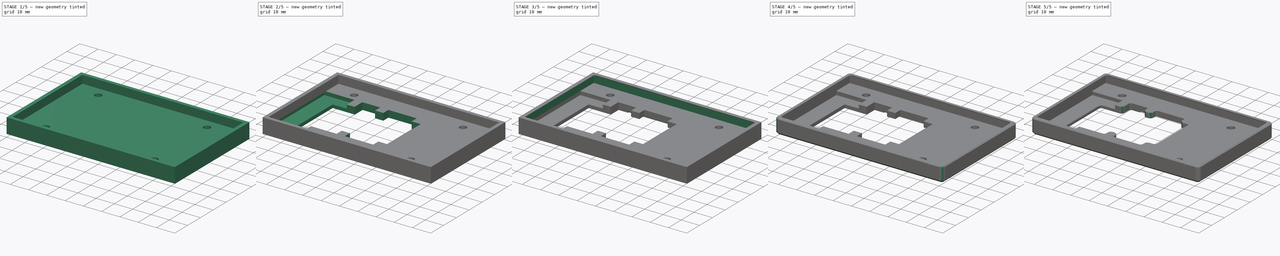
[diagram: build sequence overview — one tinted view per stage of 5, left to right]
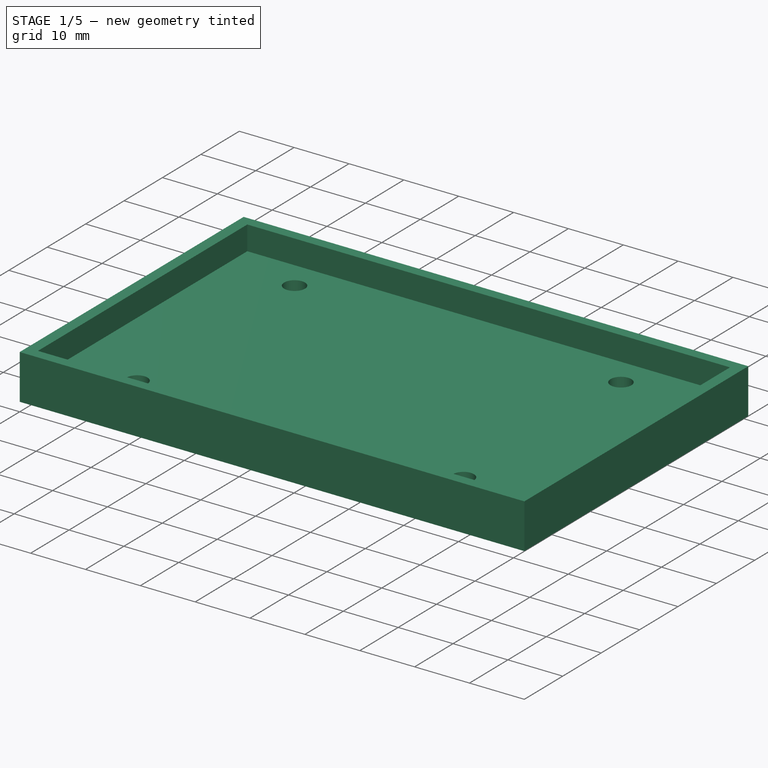
[diagram: stage 1 of 5 — iso view after this stage's code; geometry added in this stage tinted green]
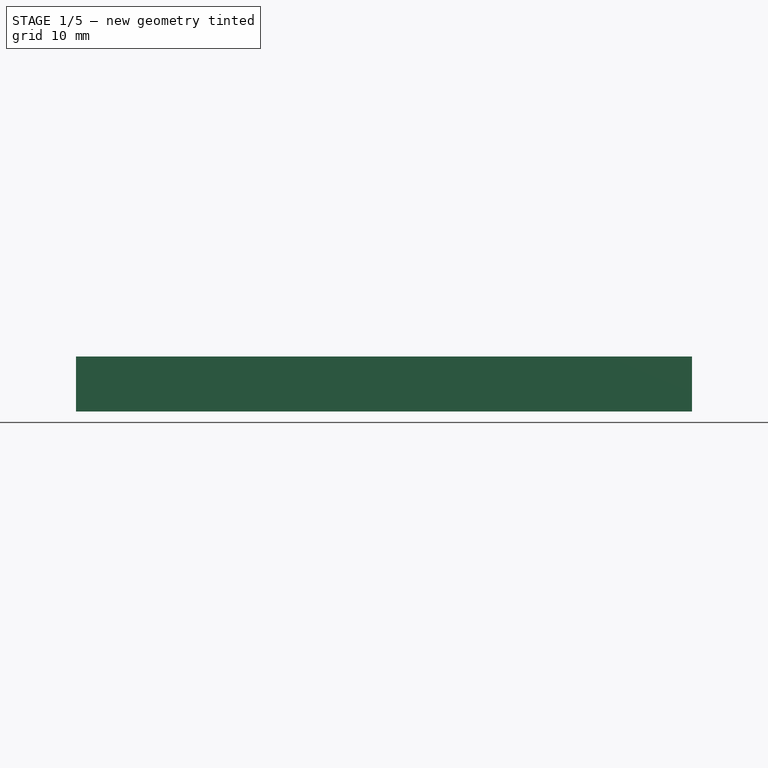
[diagram: stage 1 of 5 — front view after this stage's code; geometry added in this stage tinted green]
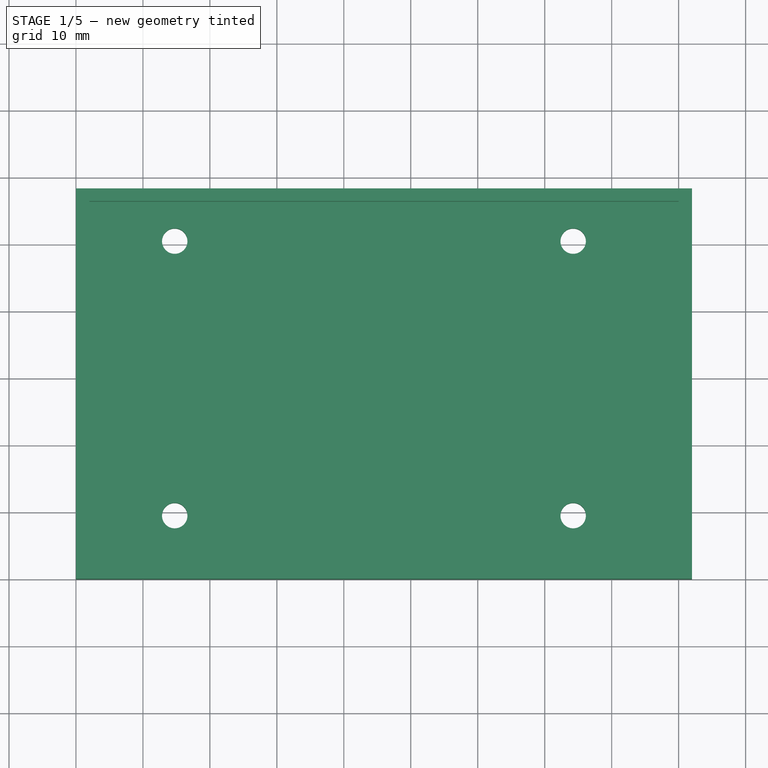
[diagram: stage 1 of 5 — top view after this stage's code; geometry added in this stage tinted green]
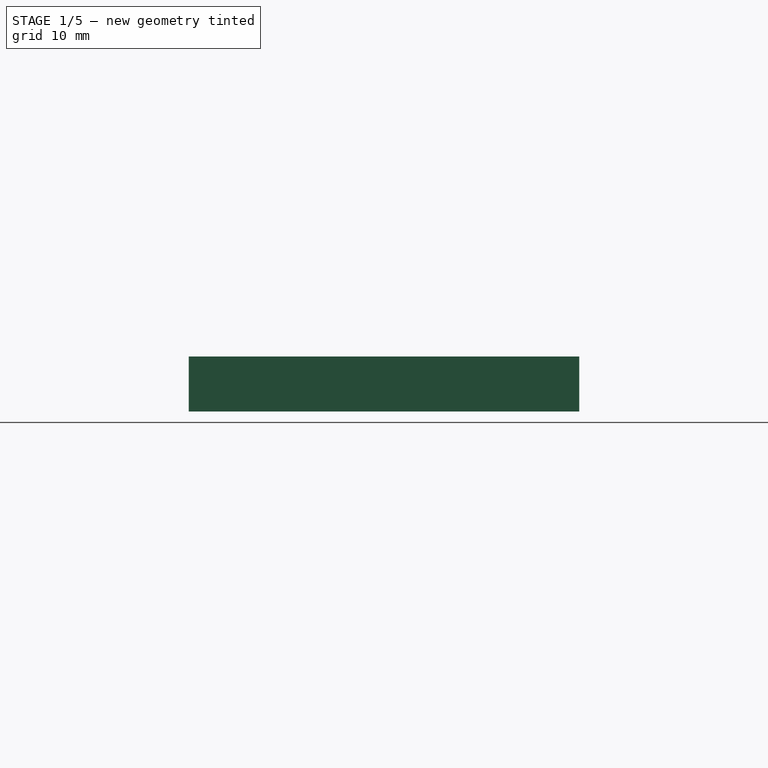
[diagram: stage 1 of 5 — right view after this stage's code; geometry added in this stage tinted green]
FCSTD DOCUMENT  (FreeCAD 1.0R39109 (Git))
Label: v0_display_mount
License: All rights reserved
LicenseURL: https://en.wikipedia.org/wiki/All_rights_reserved
objects: App::Part×13, Sketcher::SketchObject×8, PartDesign::Pocket×7, Part::Feature×6, PartDesign::Fillet×4, PartDesign::Chamfer×4, PartDesign::Pad×1, PartDesign::Body×1
note: 71 computed .brp shape members not serialized (recipe doc carries the construction recipe); baked Part::Feature solids carry a one-line shape summary decoded from their .brp

FEATURE [Sketcher::SketchObject] Sketch
  ArcFitTolerance = 1e-06
  AttachmentSupport = -> [XY_Plane001]
  FullyConstrained = true
  MakeInternals = false
  MapMode = 5
  sketch-geometry (4):
    g0: LineSegment StartX=0 StartY=0 StartZ=0 EndX=92 EndY=0 EndZ=0
    g1: LineSegment StartX=92 StartY=0 StartZ=0 EndX=92 EndY=58.3 EndZ=0
    g2: LineSegment StartX=92 StartY=58.3 StartZ=0 EndX=0 EndY=58.3 EndZ=0
    g3: LineSegment StartX=0 StartY=58.3 StartZ=0 EndX=0 EndY=0 EndZ=0
  constraints (11):
    c: Coincident(g0,g1)
    c: Coincident(g1,g2)
    c: Coincident(g2,g3)
    c: Coincident(g3,g0)
    c: Horizontal(g0)
    c: Horizontal(g2)
    c: Vertical(g1)
    c: Vertical(g3)
    c: Coincident(g0,g-1)
    c: DistanceX(g2,g2) = 92
    c: DistanceY(g1,g1) = 58.3
FEATURE [PartDesign::Pad] Pad
  Direction = (0,0,1)
  Length = 8.2
  Length2 = 10
  Profile = -> Sketch
  ReferenceAxis = -> Sketch [N_Axis]
  Refine = true
  Suppressed = false
  Type = 0
FEATURE [Sketcher::SketchObject] Sketch001
  ArcFitTolerance = 1e-06
  AttachmentSupport = -> [Pad]
  FullyConstrained = true
  MakeInternals = false
  MapMode = 5
  Placement = pos=(0,0,8.2) rot=(0,0,1;0rad)
  sketch-geometry (4):
    g0: LineSegment StartX=2 StartY=56.4 StartZ=0 EndX=2 EndY=1.9 EndZ=0
    g1: LineSegment StartX=2 StartY=1.9 StartZ=0 EndX=90 EndY=1.9 EndZ=0
    g2: LineSegment StartX=90 StartY=1.9 StartZ=0 EndX=90 EndY=56.4 EndZ=0
    g3: LineSegment StartX=90 StartY=56.4 StartZ=0 EndX=2 EndY=56.4 EndZ=0
  constraints (12):
    c: Coincident(g0,g1)
    c: Coincident(g1,g2)
    c: Coincident(g2,g3)
    c: Coincident(g3,g0)
    c: Vertical(g0)
    c: Vertical(g2)
    c: Horizontal(g1)
    c: Horizontal(g3)
    c: DistanceX(g3,g3) = 88
    c: DistanceY(g2,g2) = 54.5
    c: Distance(g-2,g0) = 2
    c: Distance(g-1,g1) = 1.9
FEATURE [PartDesign::Pocket] Pocket  label="display cutout"
  BaseFeature = -> Pad
  Direction = (0,0,-1)
  Length = 4.4
  Length2 = 5
  Profile = -> Sketch001
  ReferenceAxis = -> Sketch001 [N_Axis]
  Refine = true
  Suppressed = false
  Type = 0
FEATURE [Sketcher::SketchObject] Sketch005
  ArcFitTolerance = 1e-06
  FullyConstrained = false
  MakeInternals = false
  MapMode = 5
  Placement = pos=(0,0,3.8) rot=(0,0,1;0rad)
  sketch-geometry (8):
    g0: LineSegment [constr] StartX=-5.89842 StartY=50.5 StartZ=0 EndX=111.03 EndY=50.5 EndZ=0
    g1: LineSegment [constr] StartX=-7.67481 StartY=9.5 StartZ=0 EndX=111.866 EndY=9.5 EndZ=0
    g2: LineSegment [constr] StartX=14.75 StartY=65.9034 StartZ=0 EndX=14.75 EndY=-12.4668 EndZ=0
    g3: LineSegment [constr] StartX=74.25 StartY=66.7393 StartZ=0 EndX=74.25 EndY=-11.0039 EndZ=0
    g4: Circle CenterX=14.75 CenterY=50.5 CenterZ=0 NormalX=0 NormalY=0 NormalZ=1 AngleXU=0 Radius=1.9
    g5: Circle CenterX=14.75 CenterY=9.5 CenterZ=0 NormalX=0 NormalY=0 NormalZ=1 AngleXU=0 Radius=1.9
    g6: Circle CenterX=74.25 CenterY=9.5 CenterZ=0 NormalX=0 NormalY=0 NormalZ=1 AngleXU=0 Radius=1.9
    g7: Circle CenterX=74.25 CenterY=50.5 CenterZ=0 NormalX=0 NormalY=0 NormalZ=1 AngleXU=0 Radius=1.9
  constraints (20):
    c: Horizontal(g0)
    c: Horizontal(g1)
    c: Vertical(g2)
    c: Vertical(g3)
    c: Distance(g1,g0) = 41
    c: Distance(g3,g2) = 59.5
    c: Distance(g-1,g1) = 9.5
    c: Distance(g-2,g2) = 14.75
    c: PointOnObject(g4,g0)
    c: PointOnObject(g5,g1)
    c: PointOnObject(g5,g2)
    c: PointOnObject(g4,g2)
    c: PointOnObject(g7,g3)
    c: PointOnObject(g7,g0)
    c: PointOnObject(g6,g3)
    c: PointOnObject(g6,g1)
    c: Diameter(g4) = 3.8
    c: Equal(g4,g7)
    c: Equal(g7,g6)
    c: Equal(g6,g5)
FEATURE [PartDesign::Pocket] Pocket004  label="mounting holes"
  BaseFeature = -> Pocket
  Direction = (0,0,-1)
  Length = 5
  Length2 = 5
  Profile = -> Sketch005
  ReferenceAxis = -> Sketch005 [N_Axis]
  Refine = true
  Suppressed = false
  Type = 0
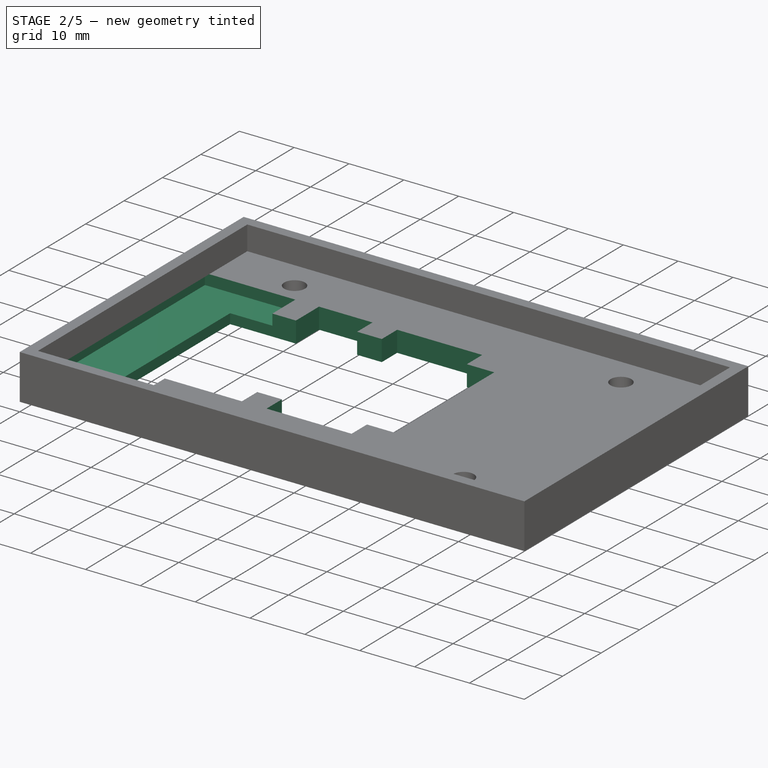
[diagram: stage 2 of 5 — iso view after this stage's code; geometry added in this stage tinted green]
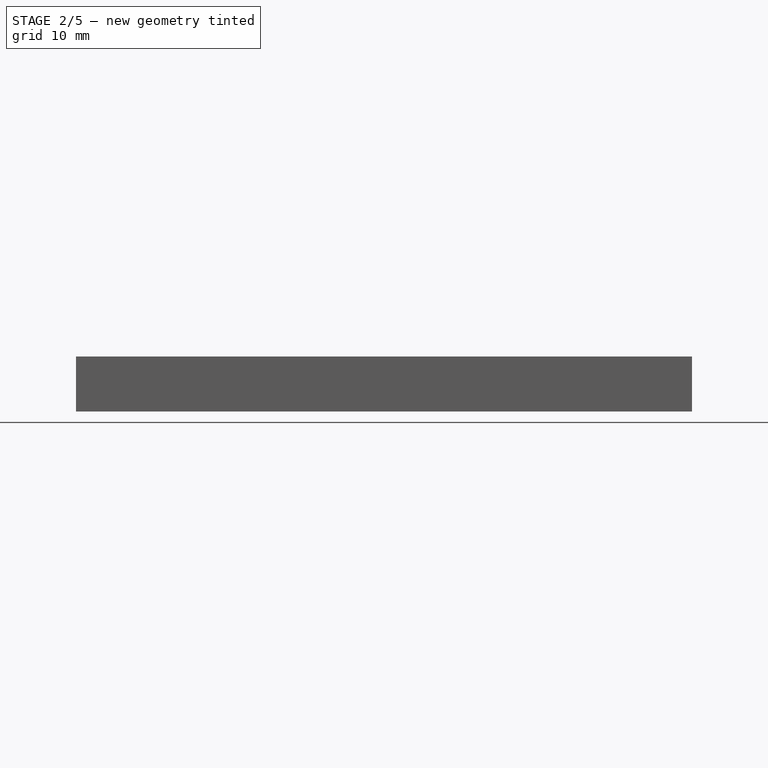
[diagram: stage 2 of 5 — front view after this stage's code; geometry added in this stage tinted green]
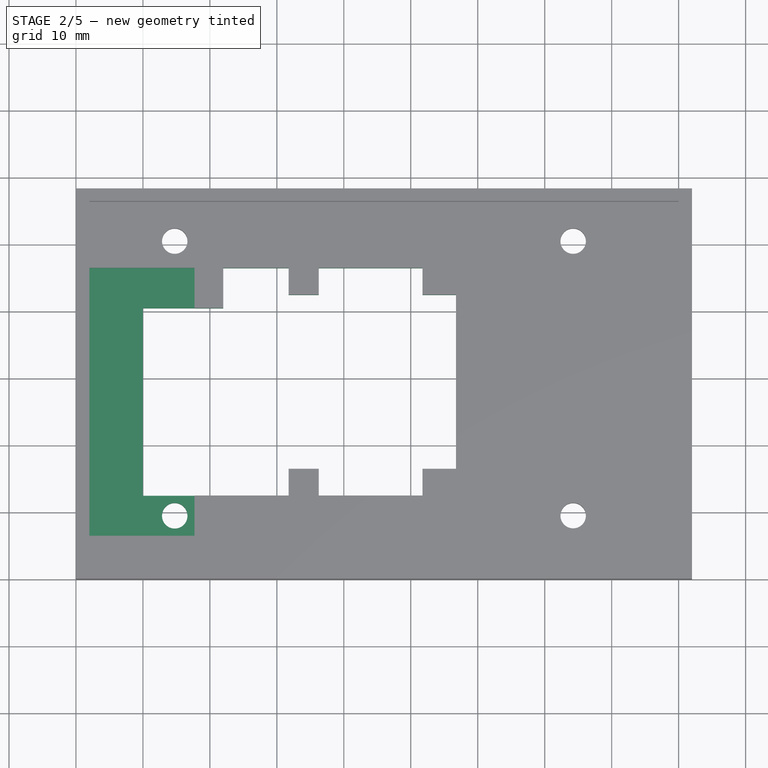
[diagram: stage 2 of 5 — top view after this stage's code; geometry added in this stage tinted green]
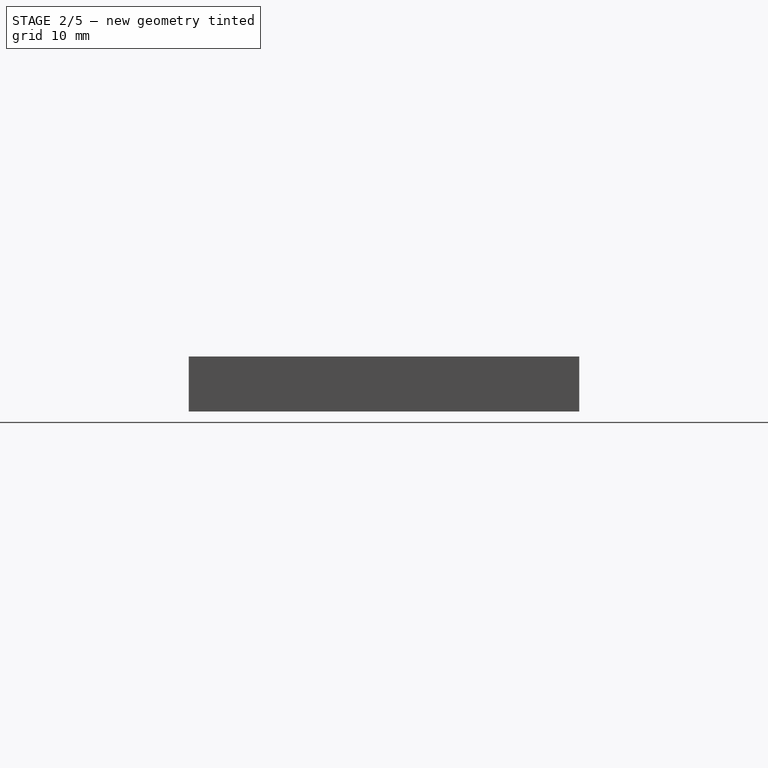
[diagram: stage 2 of 5 — right view after this stage's code; geometry added in this stage tinted green]
FEATURE [Sketcher::SketchObject] Sketch006
  ArcFitTolerance = 1e-06
  AttachmentSupport = -> [Pocket004]
  FullyConstrained = true
  MakeInternals = false
  MapMode = 5
  Placement = pos=(0,0,3.8) rot=(0,0,1;0rad)
  sketch-geometry (4):
    g0: LineSegment StartX=1.2 StartY=46.5 StartZ=0 EndX=1.2 EndY=6.5 EndZ=0
    g1: LineSegment StartX=1.2 StartY=6.5 StartZ=0 EndX=17.7 EndY=6.5 EndZ=0
    g2: LineSegment StartX=17.7 StartY=6.5 StartZ=0 EndX=17.7 EndY=46.5 EndZ=0
    g3: LineSegment StartX=17.7 StartY=46.5 StartZ=0 EndX=1.2 EndY=46.5 EndZ=0
  constraints (12):
    c: Coincident(g0,g1)
    c: Coincident(g1,g2)
    c: Coincident(g2,g3)
    c: Coincident(g3,g0)
    c: Vertical(g0)
    c: Vertical(g2)
    c: Horizontal(g1)
    c: Horizontal(g3)
    c: DistanceX(g3,g3) = 16.5
    c: DistanceY(g0,g0) = 40
    c: Distance(g0,g-2) = 1.2
    c: Distance(g-1,g1) = 6.5
FEATURE [PartDesign::Pocket] Pocket005  label="flat flex cutout"
  BaseFeature = -> Pocket004
  Direction = (0,0,-1)
  Length = 2
  Length2 = 5
  Profile = -> Sketch006
  ReferenceAxis = -> Sketch006 [N_Axis]
  Refine = true
  Suppressed = false
  Type = 0
FEATURE [Sketcher::SketchObject] Sketch007
  ArcFitTolerance = 1e-06
  AttachmentSupport = -> [Pocket005]
  FullyConstrained = true
  MakeInternals = false
  MapMode = 5
  Placement = pos=(0,0,3.8) rot=(0,0,1;0rad)
  sketch-geometry (18):
    g0: LineSegment StartX=10 StartY=40.5 StartZ=0 EndX=22 EndY=40.5 EndZ=0
    g1: LineSegment StartX=10 StartY=40.5 StartZ=0 EndX=10 EndY=12.5 EndZ=0
    g2: LineSegment StartX=22 StartY=40.5 StartZ=0 EndX=22 EndY=46.5 EndZ=0
    g3: LineSegment StartX=22 StartY=46.5 StartZ=0 EndX=31.75 EndY=46.5 EndZ=0
    g4: LineSegment StartX=31.75 StartY=46.5 StartZ=0 EndX=31.75 EndY=42.5 EndZ=0
    g5: LineSegment StartX=31.75 StartY=42.5 StartZ=0 EndX=36.25 EndY=42.5 EndZ=0
    g6: LineSegment StartX=36.25 StartY=42.5 StartZ=0 EndX=36.25 EndY=46.5 EndZ=0
    g7: LineSegment StartX=36.25 StartY=46.5 StartZ=0 EndX=51.75 EndY=46.5 EndZ=0
    g8: LineSegment StartX=51.75 StartY=46.5 StartZ=0 EndX=51.75 EndY=42.5 EndZ=0
    g9: LineSegment StartX=51.75 StartY=42.5 StartZ=0 EndX=56.75 EndY=42.5 EndZ=0
    g10: LineSegment StartX=56.75 StartY=42.5 StartZ=0 EndX=56.75 EndY=16.5 EndZ=0
    g11: LineSegment StartX=56.75 StartY=16.5 StartZ=0 EndX=51.75 EndY=16.5 EndZ=0
    g12: LineSegment StartX=51.75 StartY=16.5 StartZ=0 EndX=51.75 EndY=12.5 EndZ=0
    g13: LineSegment StartX=51.75 StartY=12.5 StartZ=0 EndX=36.25 EndY=12.5 EndZ=0
    g14: LineSegment StartX=36.25 StartY=12.5 StartZ=0 EndX=36.25 EndY=16.5 EndZ=0
    g15: LineSegment StartX=36.25 StartY=16.5 StartZ=0 EndX=31.75 EndY=16.5 EndZ=0
    g16: LineSegment StartX=31.75 StartY=16.5 StartZ=0 EndX=31.75 EndY=12.5 EndZ=0
    g17: LineSegment StartX=10 StartY=12.5 StartZ=0 EndX=31.75 EndY=12.5 EndZ=0
  constraints (54):
    c: Horizontal(g0)
    c: Coincident(g1,g0)
    c: Vertical(g1)
    c: Distance(g1,g-2) = 10
    c: Distance(g1,g-1) = 12.5
    c: Distance(g0,g-1) = 40.5
    c: Coincident(g2,g0)
    c: Vertical(g2)
    c: Coincident(g3,g2)
    c: Horizontal(g3)
    c: Coincident(g4,g3)
    c: Vertical(g4)
    c: Coincident(g5,g4)
    c: Horizontal(g5)
    c: Coincident(g6,g5)
    c: Vertical(g6)
    c: Coincident(g7,g6)
    c: Horizontal(g7)
    c: Coincident(g8,g7)
    c: Vertical(g8)
    c: Coincident(g9,g8)
    c: Horizontal(g9)
    c: Coincident(g10,g9)
    c: Vertical(g10)
    c: Coincident(g11,g10)
    c: Horizontal(g11)
    c: Coincident(g12,g11)
    c: Vertical(g12)
    c: Coincident(g13,g12)
    c: Horizontal(g13)
    c: Coincident(g14,g13)
    c: Vertical(g14)
    c: Coincident(g15,g14)
    c: Horizontal(g15)
    c: Coincident(g16,g15)
    c: Vertical(g16)
    c: DistanceY(g2,g2) = 6
    c: DistanceX(g3,g3) = 9.75
    c: DistanceX(g5,g5) = 4.5
    c: DistanceX(g7,g7) = 15.5
    c: DistanceX(g9,g9) = 5
    c: DistanceX(g0,g0) = 12
    c: Coincident(g17,g1)
    c: Horizontal(g17)
    c: Coincident(g17,g16)
    c: DistanceX(g17,g17) = 21.75
    c: DistanceY(g16,g16) = 4
    c: Equal(g16,g14)
    c: Equal(g14,g12)
    c: DistanceX(g15,g15) = 4.5
    c: DistanceX(g13,g13) = 15.5
    c: Equal(g4,g6)
    c: Equal(g6,g8)
    c: DistanceY(g4,g4) = 4
FEATURE [PartDesign::Pocket] Pocket006
  BaseFeature = -> Pocket005
  Direction = (0,0,-1)
  Length = 5
  Length2 = 5
  Profile = -> Sketch007
  ReferenceAxis = -> Sketch007 [N_Axis]
  Refine = true
  Suppressed = false
  Type = 0
FEATURE [Part::Feature] Part__Feature  label="Open CASCADE STEP translator 6.8 1.1.1"
  Placement = pos=(0,0,-0.795404) rot=(0,0,1;0rad)
  shape: bbox 30 x 35 x 0.7954 mm, 26 faces (baked)
FEATURE [App::Part] Board
  Group = -> [Part__Feature]
  Origin = -> Origin002
FEATURE [Part::Feature] Part__Feature001  label="Extruded"
  shape: bbox 0.95 x 1.7 x 0.6 mm, 6 faces (baked)
FEATURE [App::Part] _230319136  label="6230319136"
  Group = -> [Part__Feature001]
  Origin = -> Origin003
  Placement = pos=(6.589,22.787,0) rot=(0,0,1;0rad)
FEATURE [App::Part] R3
  Group = -> [_230319136]
  Origin = -> Origin004
FEATURE [Part::Feature] Part__Feature002  label="Extruded001"
  shape: bbox 0.95 x 1.7 x 0.6 mm, 6 faces (baked)
FEATURE [App::Part] _230319137  label="6230319136001"
  Group = -> [Part__Feature002]
  Origin = -> Origin005
  Placement = pos=(2.691,7.913,0) rot=(0,0,1;0rad)
FEATURE [App::Part] R2
  Group = -> [_230319137]
  Origin = -> Origin006
FEATURE [Part::Feature] Part__Feature003  label="Extruded002"
  shape: bbox 0.95 x 1.7 x 0.6 mm, 6 faces (baked)
FEATURE [App::Part] _230319138  label="6230319136002"
  Group = -> [Part__Feature003]
  Origin = -> Origin007
  Placement = pos=(1.04,8.548,0) rot=(0,0,1;0rad)
FEATURE [App::Part] R1
  Group = -> [_230319138]
  Origin = -> Origin008
FEATURE [Part::Feature] Part__Feature004  label="Extruded003"
  shape: bbox 1.4 x 3 x 1.11 mm, 6 faces (baked)
FEATURE [App::Part] _230317456  label="6230317456"
  Group = -> [Part__Feature004]
  Origin = -> Origin009
  Placement = pos=(9.51,22.787,0) rot=(0,0,1;0rad)
FEATURE [App::Part] Q1
  Group = -> [_230317456]
  Origin = -> Origin010
FEATURE [Part::Feature] Part__Feature005  label="Extruded004"
  shape: bbox 3.4 x 25.3 x 2.06 mm, 6 faces (baked)
FEATURE [App::Part] _230323456  label="6230323456"
  Group = -> [Part__Feature005]
  Origin = -> Origin011
  Placement = pos=(12.4,16.25,-2.8554) rot=(0,0,1;0rad)
FEATURE [App::Part] LCD1
  Group = -> [_230323456]
  Origin = -> Origin012
FEATURE [App::Part] PCB
  Group = -> [Board,R3,R2,R1,Q1,LCD1]
  Origin = -> Origin013
  Placement = pos=(34,46,0) rot=(1,0,0;3.14159rad)
FEATURE [Sketcher::SketchObject] Sketch009
  ArcFitTolerance = 1e-06
  FullyConstrained = false
  MakeInternals = false
  MapMode = 5
  Placement = pos=(0,0,0) rot=(1,0,0;3.14159rad)
  sketch-geometry (8):
    g0: LineSegment [constr] StartX=34 StartY=-8.71464 StartZ=0 EndX=34 EndY=-50.7414 EndZ=0
    g1: LineSegment [constr] StartX=54 StartY=-8.98447 StartZ=0 EndX=54 EndY=-49.1898 EndZ=0
    g2: LineSegment [constr] StartX=24.3221 StartY=-44.5 StartZ=0 EndX=60.2101 EndY=-44.5 EndZ=0
    g3: LineSegment [constr] StartX=24.5245 StartY=-14.5 StartZ=0 EndX=61.5593 EndY=-14.5 EndZ=0
    g4: Circle CenterX=34 CenterY=-14.5 CenterZ=0 NormalX=0 NormalY=0 NormalZ=1 AngleXU=0 Radius=0.85
    g5: Circle CenterX=34 CenterY=-44.5 CenterZ=0 NormalX=0 NormalY=0 NormalZ=1 AngleXU=0 Radius=0.85
    g6: Circle CenterX=54 CenterY=-44.5 CenterZ=0 NormalX=0 NormalY=0 NormalZ=1 AngleXU=0 Radius=0.85
    g7: Circle CenterX=54 CenterY=-14.5 CenterZ=0 NormalX=0 NormalY=0 NormalZ=1 AngleXU=0 Radius=0.85
  constraints (20):
    c: Vertical(g0)
    c: Vertical(g1)
    c: Horizontal(g2)
    c: Horizontal(g3)
    c: Distance(g1,g0) = 20
    c: Distance(g2,g3) = 30
    c: Distance(g-1,g3) = 14.5
    c: Distance(g-2,g0) = 34
    c: PointOnObject(g4,g3)
    c: PointOnObject(g5,g2)
    c: PointOnObject(g6,g2)
    c: PointOnObject(g7,g3)
    c: PointOnObject(g4,g0)
    c: PointOnObject(g7,g1)
    c: PointOnObject(g6,g1)
    c: PointOnObject(g5,g0)
    c: Diameter(g4) = 1.7
    c: Equal(g4,g7)
    c: Equal(g7,g5)
    c: Equal(g5,g6)
FEATURE [PartDesign::Pocket] Pocket008
  BaseFeature = -> Pocket006
  Direction = (0,1e-16,1)
  Length = 3.4
  Length2 = 5
  Profile = -> Sketch009
  ReferenceAxis = -> Sketch009 [N_Axis]
  Refine = true
  Suppressed = false
  Type = 0
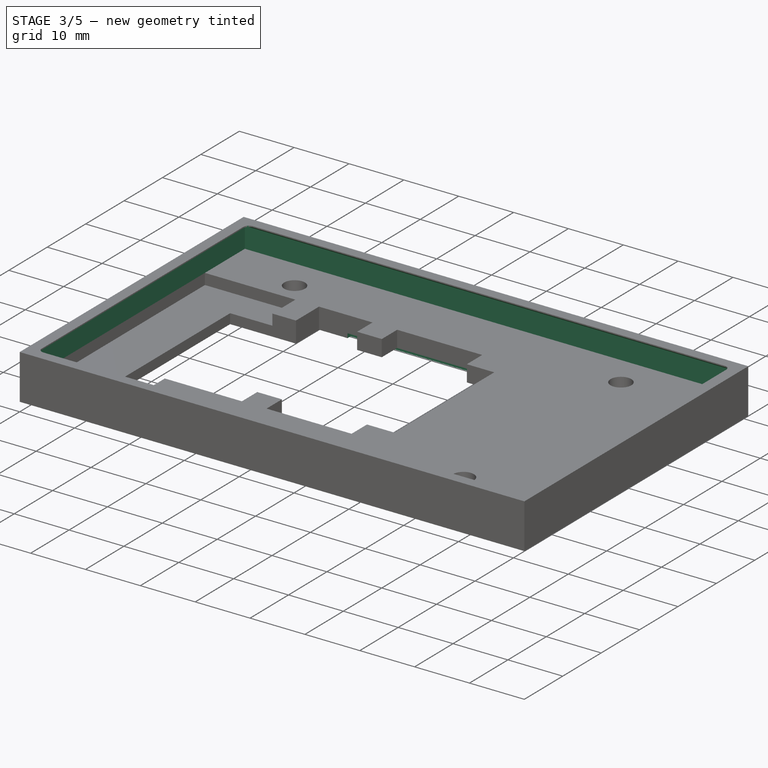
[diagram: stage 3 of 5 — iso view after this stage's code; geometry added in this stage tinted green]
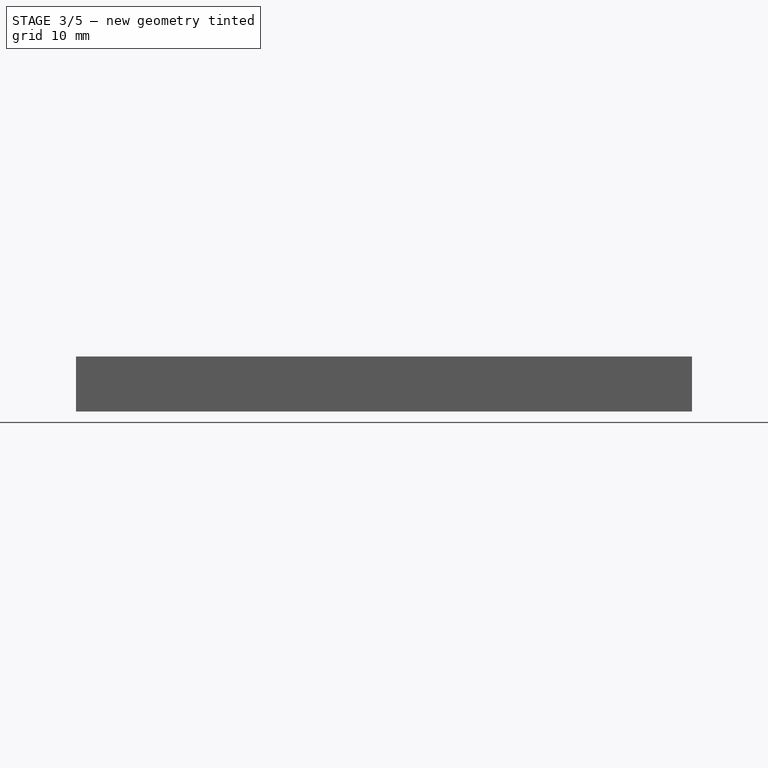
[diagram: stage 3 of 5 — front view after this stage's code; geometry added in this stage tinted green]
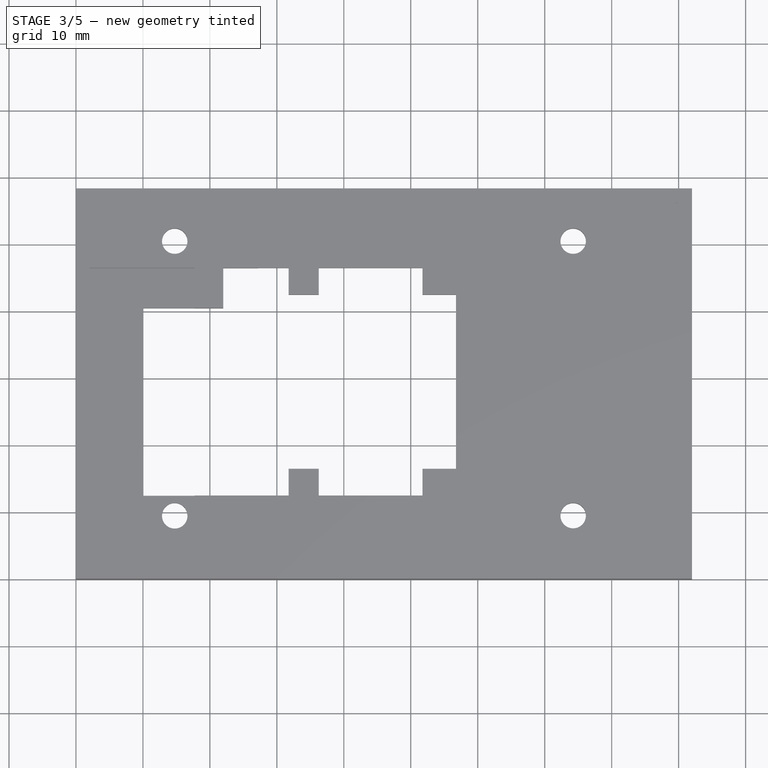
[diagram: stage 3 of 5 — top view after this stage's code; geometry added in this stage tinted green]
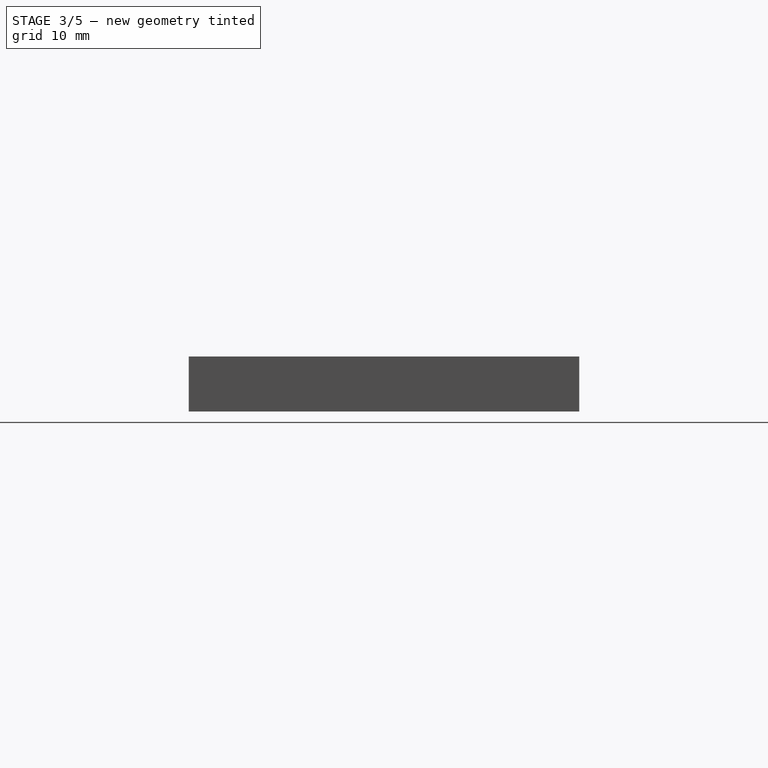
[diagram: stage 3 of 5 — right view after this stage's code; geometry added in this stage tinted green]
FEATURE [Sketcher::SketchObject] Sketch010
  ArcFitTolerance = 1e-06
  AttachmentSupport = -> [Pocket008]
  FullyConstrained = true
  MakeInternals = false
  MapMode = 5
  Placement = pos=(0,0,0) rot=(1,0,0;3.14159rad)
  sketch-geometry (4):
    g0: LineSegment StartX=27.2 StartY=-11.7 StartZ=0 EndX=57.8 EndY=-11.7 EndZ=0
    g1: LineSegment StartX=57.8 StartY=-11.7 StartZ=0 EndX=57.8 EndY=-47.3 EndZ=0
    g2: LineSegment StartX=57.8 StartY=-47.3 StartZ=0 EndX=27.2 EndY=-47.3 EndZ=0
    g3: LineSegment StartX=27.2 StartY=-11.7 StartZ=0 EndX=27.2 EndY=-47.3 EndZ=0
  constraints (12):
    c: Horizontal(g0)
    c: Coincident(g1,g0)
    c: Vertical(g1)
    c: Coincident(g2,g1)
    c: Horizontal(g2)
    c: DistanceY(g1,g1) = 35.6
    c: DistanceX(g0,g0) = 30.6
    c: Distance(g0,g-1) = 11.7
    c: Distance(g0,g-2) = 57.8
    c: Coincident(g3,g0)
    c: Coincident(g3,g2)
    c: Vertical(g3)
FEATURE [PartDesign::Pocket] Pocket009
  BaseFeature = -> Pocket008
  Direction = (0,0,1)
  Length = 0.8
  Length2 = 5
  Profile = -> Sketch010
  ReferenceAxis = -> Sketch010 [N_Axis]
  Refine = true
  Suppressed = false
  Type = 0
FEATURE [Sketcher::SketchObject] Sketch011
  ArcFitTolerance = 1e-06
  AttachmentOffset = pos=(0,0,-0.2) rot=(0,0,1;0rad)
  AttachmentSupport = -> [Pocket009]
  FullyConstrained = true
  MakeInternals = false
  MapMode = 5
  Placement = pos=(0,0,8) rot=(0,0,1;0rad)
  sketch-geometry (4):
    g0: LineSegment StartX=1.2 StartY=56.9 StartZ=0 EndX=1.2 EndY=1.4 EndZ=0
    g1: LineSegment StartX=1.2 StartY=1.4 StartZ=0 EndX=90.5 EndY=1.4 EndZ=0
    g2: LineSegment StartX=90.5 StartY=1.4 StartZ=0 EndX=90.5 EndY=56.9 EndZ=0
    g3: LineSegment StartX=90.5 StartY=56.9 StartZ=0 EndX=1.2 EndY=56.9 EndZ=0
  constraints (12):
    c: Coincident(g0,g1)
    c: Coincident(g1,g2)
    c: Coincident(g2,g3)
    c: Coincident(g3,g0)
    c: Vertical(g0)
    c: Vertical(g2)
    c: Horizontal(g1)
    c: Horizontal(g3)
    c: Distance(g0,g-1) = 1.4
    c: Distance(g-2,g0) = 1.2
    c: DistanceX(g3,g3) = 89.3
    c: DistanceY(g2,g2) = 55.5
FEATURE [PartDesign::Pocket] Pocket010
  BaseFeature = -> Pocket009
  Direction = (0,0,-1)
  Length = 4.2
  Length2 = 5
  Profile = -> Sketch011
  ReferenceAxis = -> Sketch011 [N_Axis]
  Refine = true
  Suppressed = false
  Type = 0
FEATURE [PartDesign::Fillet] Fillet
  Base = -> Pocket010 [Edge72,Edge67,Edge69,Edge70]
  BaseFeature = -> Pocket010
  Radius = 1
  Refine = true
  SupportTransform = false
  Suppressed = false
  UseAllEdges = false
FEATURE [PartDesign::Chamfer] Chamfer
  Angle = 45
  Base = -> Fillet [Edge37,Edge39,Edge40,Edge38]
  BaseFeature = -> Fillet
  ChamferType = 0
  FlipDirection = false
  Refine = true
  Size = 0.4
  Size2 = 1
  SupportTransform = false
  Suppressed = false
  UseAllEdges = false
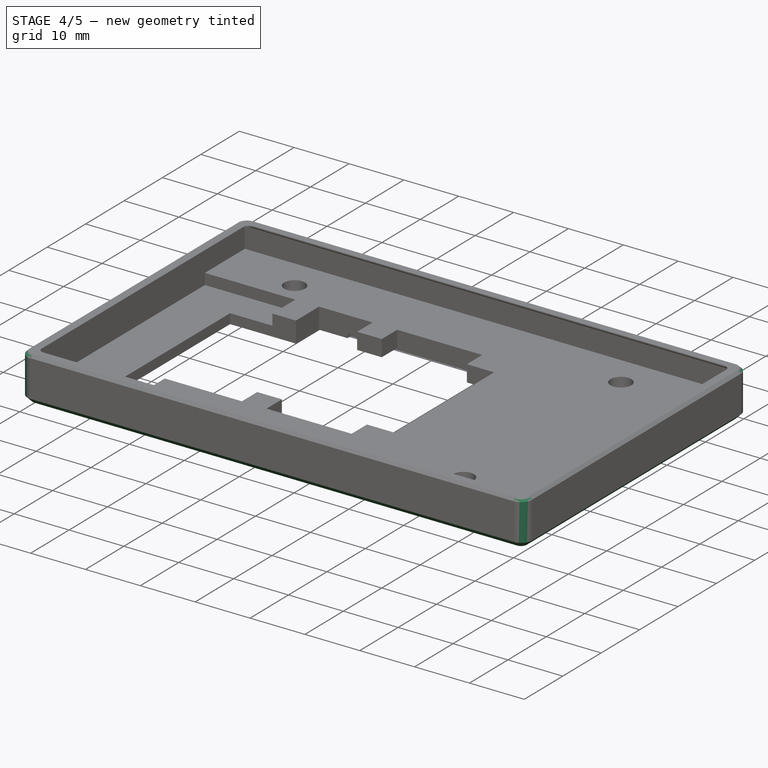
[diagram: stage 4 of 5 — iso view after this stage's code; geometry added in this stage tinted green]
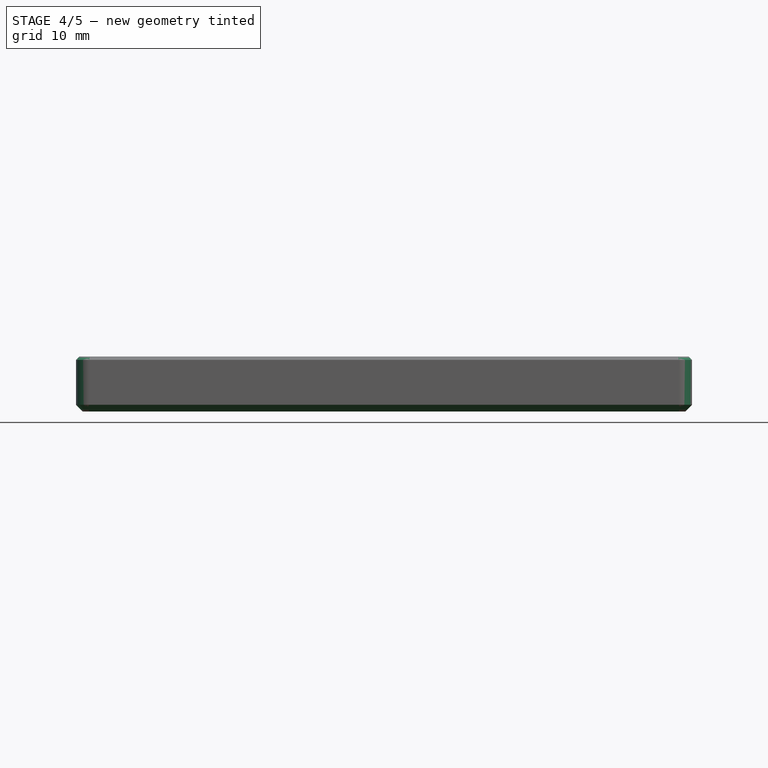
[diagram: stage 4 of 5 — front view after this stage's code; geometry added in this stage tinted green]
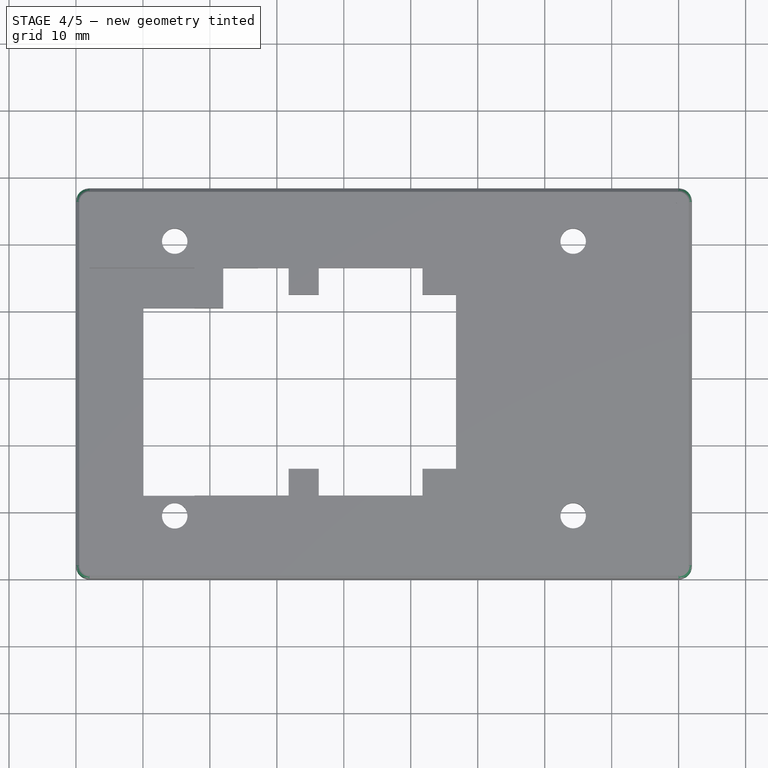
[diagram: stage 4 of 5 — top view after this stage's code; geometry added in this stage tinted green]
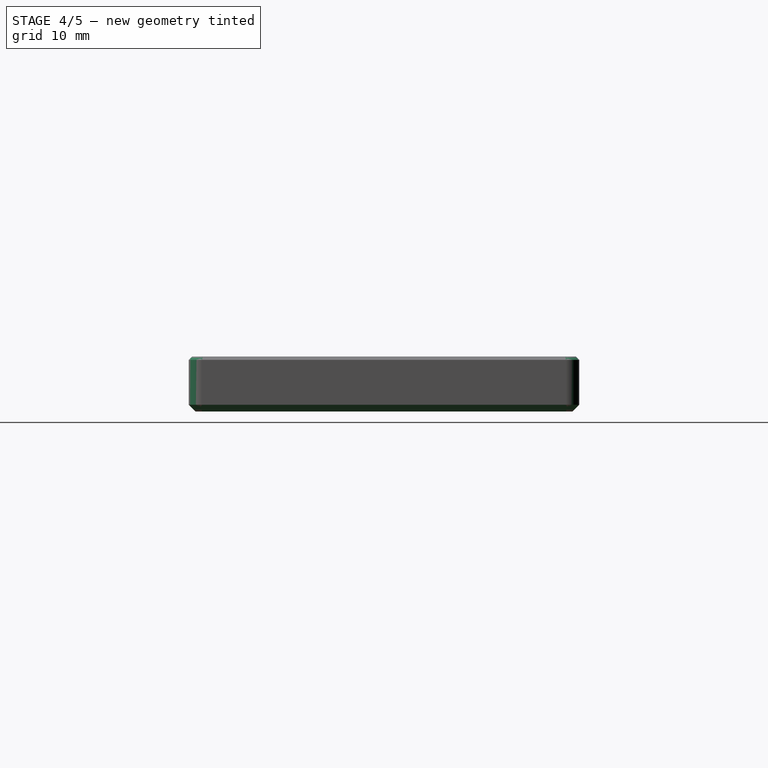
[diagram: stage 4 of 5 — right view after this stage's code; geometry added in this stage tinted green]
FEATURE [PartDesign::Fillet] Fillet001
  Base = -> Chamfer [Edge87,Edge88,Edge92,Edge90]
  BaseFeature = -> Chamfer
  Radius = 2
  Refine = true
  SupportTransform = false
  Suppressed = false
  UseAllEdges = false
FEATURE [PartDesign::Chamfer] Chamfer001
  Angle = 45
  Base = -> Fillet001 [Edge1]
  BaseFeature = -> Fillet001
  ChamferType = 0
  FlipDirection = false
  Refine = true
  Size = 0.5
  Size2 = 1
  SupportTransform = false
  Suppressed = false
  UseAllEdges = false
FEATURE [PartDesign::Chamfer] Chamfer002
  Angle = 45
  Base = -> Chamfer001 [Edge50]
  BaseFeature = -> Chamfer001
  ChamferType = 0
  FlipDirection = false
  Refine = true
  Size = 1
  Size2 = 1
  SupportTransform = false
  Suppressed = false
  UseAllEdges = false
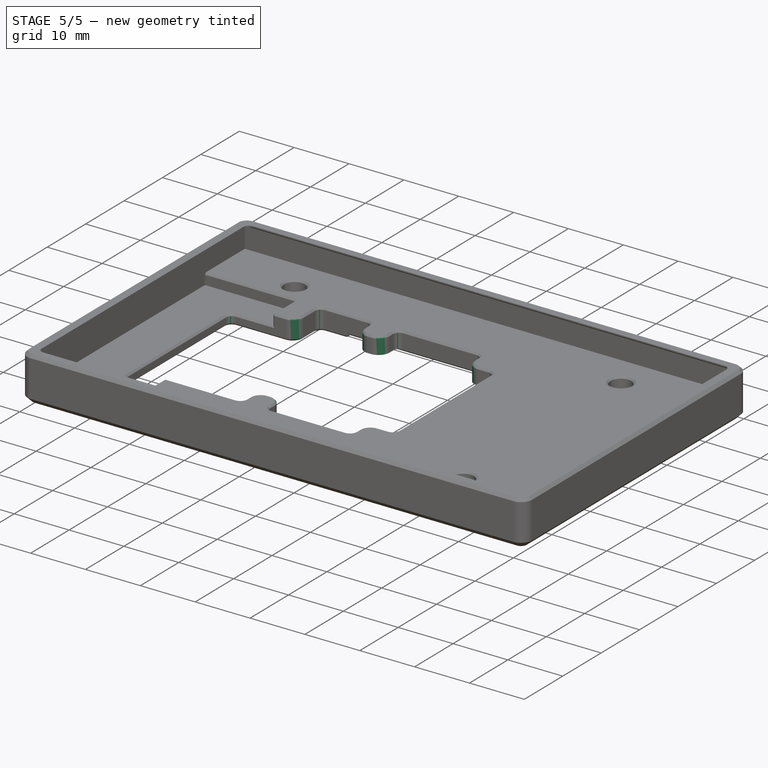
[diagram: stage 5 of 5 — iso view after this stage's code; geometry added in this stage tinted green]
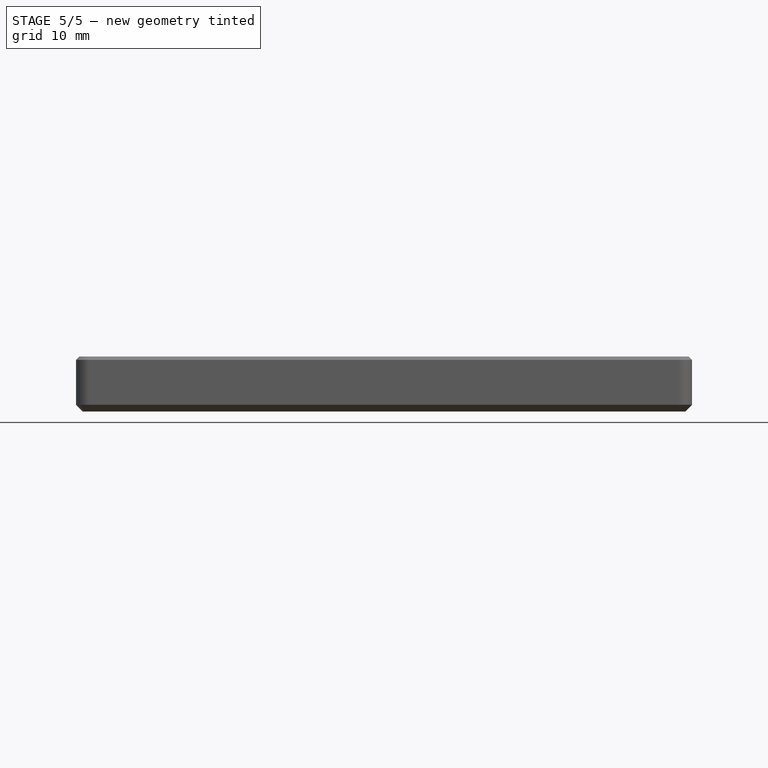
[diagram: stage 5 of 5 — front view after this stage's code; geometry added in this stage tinted green]
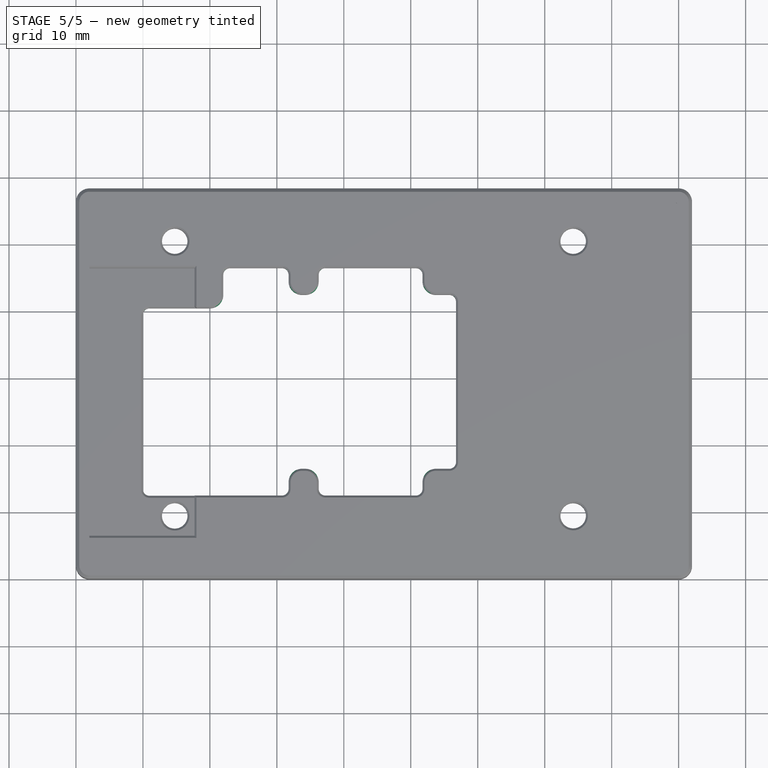
[diagram: stage 5 of 5 — top view after this stage's code; geometry added in this stage tinted green]
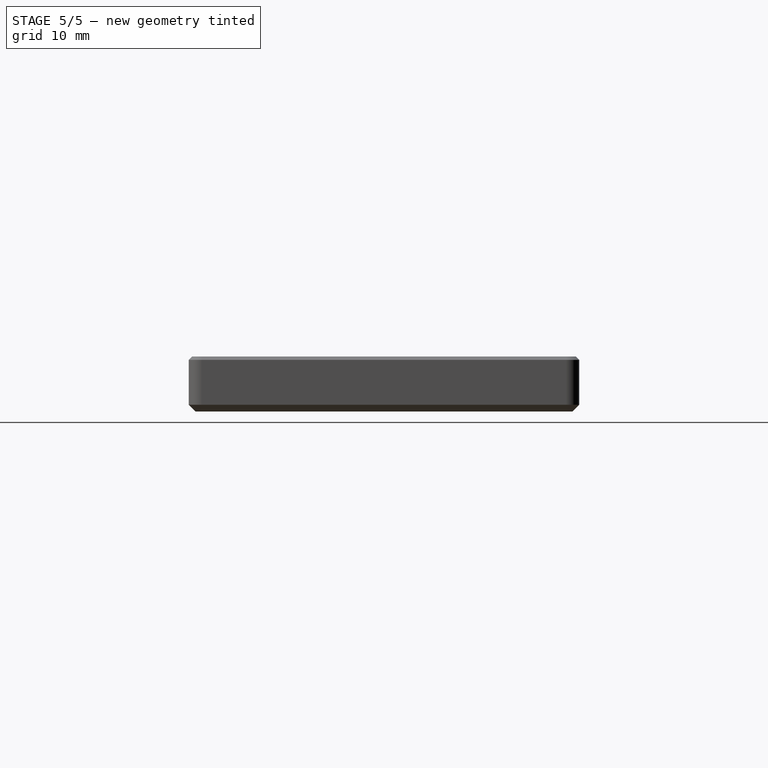
[diagram: stage 5 of 5 — right view after this stage's code; geometry added in this stage tinted green]
FEATURE [PartDesign::Fillet] Fillet002
  Base = -> Chamfer002 [Edge177,Edge193,Edge196,Edge160,Edge202,Edge199,Edge99]
  BaseFeature = -> Chamfer002
  Radius = 2
  Refine = true
  SupportTransform = false
  Suppressed = false
  UseAllEdges = false
FEATURE [PartDesign::Fillet] Fillet003
  Base = -> Fillet002 [Edge26,Edge30,Edge167,Edge168,Edge171,Edge173,Edge179,Edge46,Edge178,Edge36,Edge40]
  BaseFeature = -> Fillet002
  Radius = 1
  Refine = true
  SupportTransform = false
  Suppressed = false
  UseAllEdges = false
FEATURE [PartDesign::Chamfer] Chamfer003
  Angle = 45
  Base = -> Fillet003 [Edge34,Edge48,Edge41,Edge90,Edge88,Edge104,Edge102,Edge79,Edge84,Edge86,Edge82,Edge23,Edge25,Edge26,Edge24,Edge9,Edge14,Edge12,Edge10,Edge8,Edge6]
  BaseFeature = -> Fillet003
  ChamferType = 0
  FlipDirection = false
  Refine = true
  Size = 0.3
  Size2 = 1
  SupportTransform = false
  Suppressed = false
  UseAllEdges = false
FEATURE [PartDesign::Body] Body
  AllowCompound = false
  Group = -> [Sketch,Pad,Sketch001,Pocket,Sketch005,Pocket004,Sketch006,Pocket005,Sketch007,Pocket006,Sketch009,Pocket008,Sketch010,Pocket009,Sketch011,Pocket010,Fillet,Chamfer,Fillet001,Chamfer001,Chamfer002,Fillet002,Fillet003,Chamfer003]
  Origin = -> Origin001
  Tip = -> Chamfer003
FEATURE [App::Part] Part  label="frame"
  Group = -> [Body]
  Origin = -> Origin
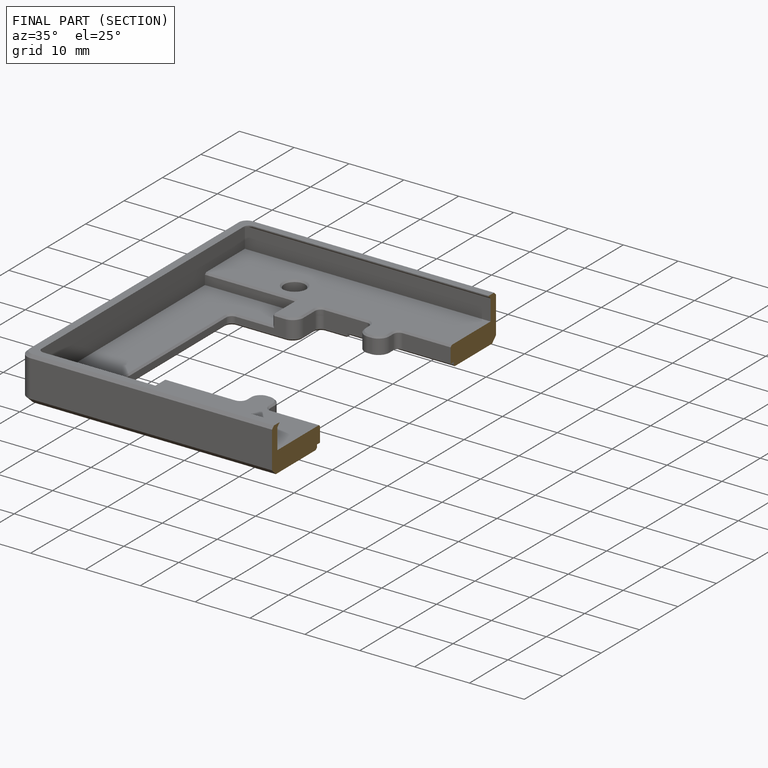
[diagram: finished part — half-section view (interior)]
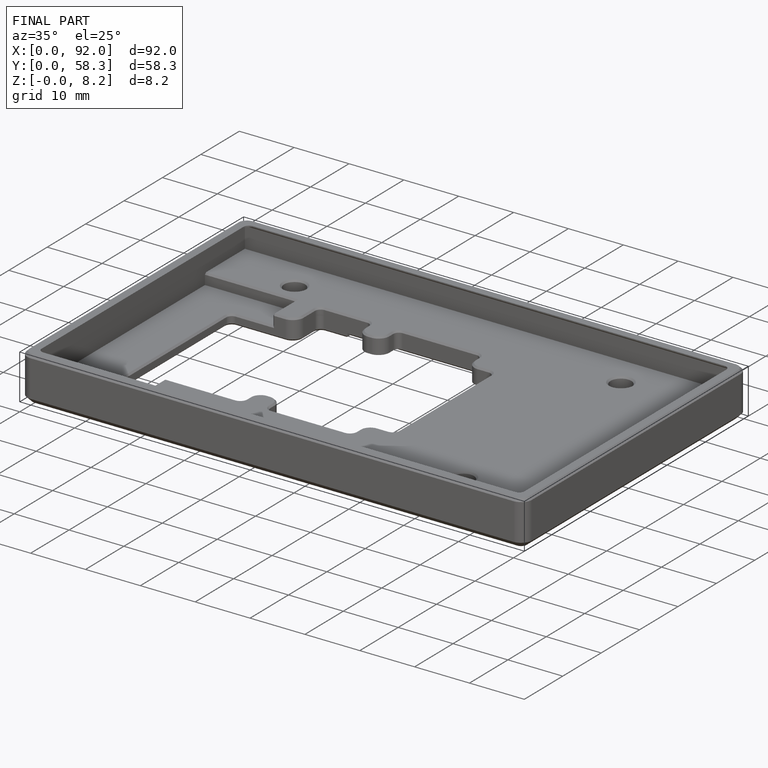
[diagram: finished part — iso view with bounding-box wireframe]
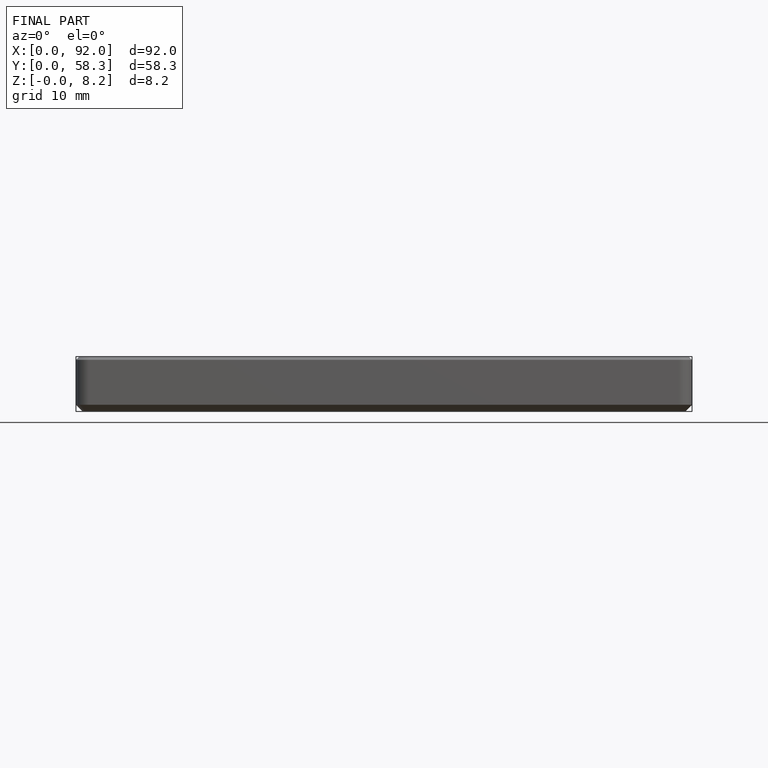
[diagram: finished part — front view with bounding-box wireframe]
